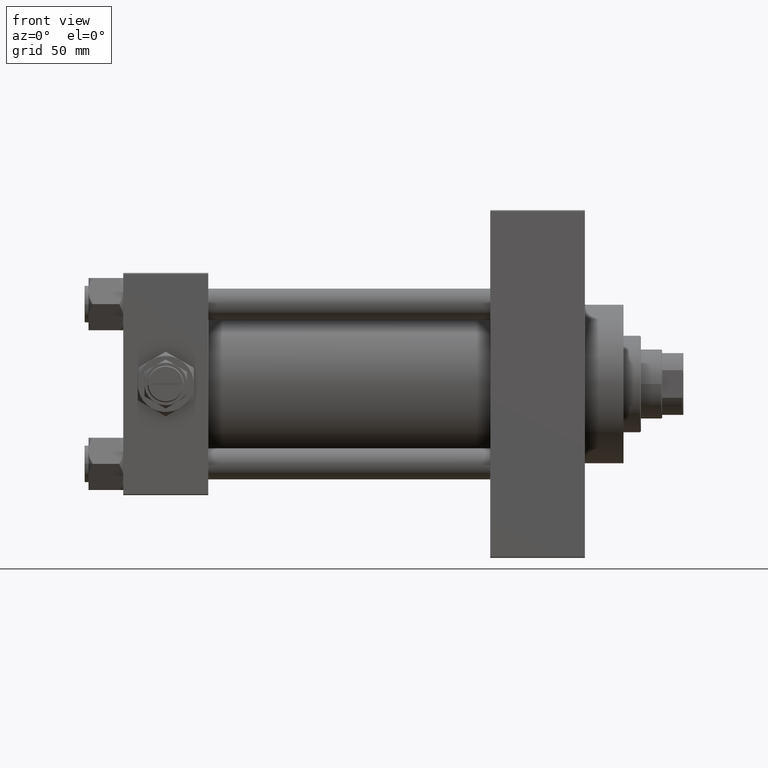
[diagram: clean part render]
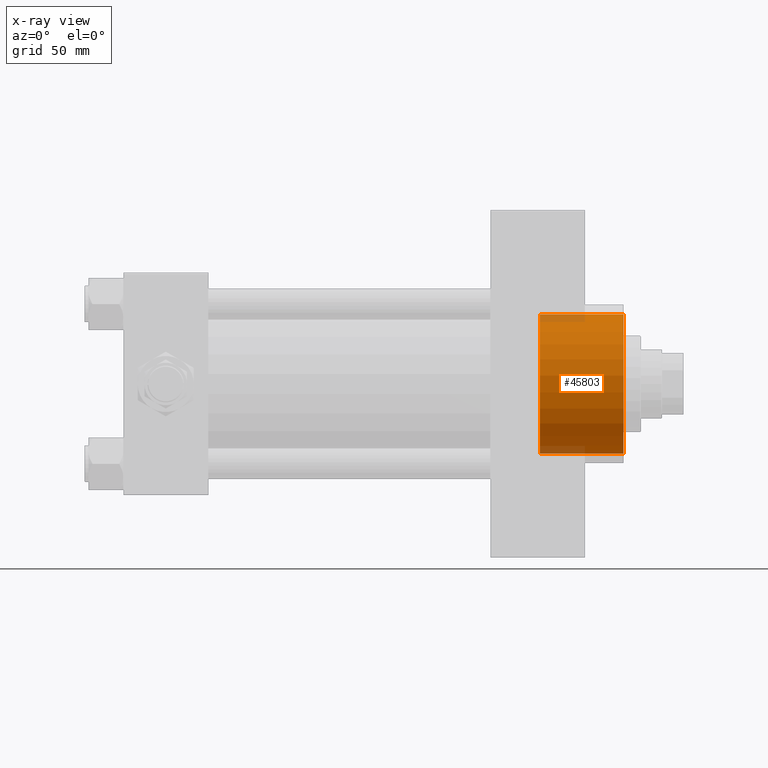
[diagram: x-ray — body ghosted, one internal face saturated and labeled with its STEP entity id]
A machine part, front view, then the same camera in x-ray: the body is ghosted and one INTERNAL B-rep face — a face not visible from any outside direction — is saturated and labeled: STEP entity #45803.
In plain terms, the highlighted cylindrical surface (partial cylindrical patch) has radius 36 mm, axis along (1, 0, 0).
Its self-contained STEP definition (entity closure, byte-faithful):
#217 = CARTESIAN_POINT ( 'NONE',  ( 215.7400000000000091, 0.000000000000000000, -36.00000000000000000 ) ) ;
#1581 = CIRCLE ( 'NONE', #24737, 36.00000000000000000 ) ;
#2703 = DIRECTION ( 'NONE',  ( 0.000000000000000000, 0.000000000000000000, -1.000000000000000000 ) ) ;
#5420 = LINE ( 'NONE', #25401, #14523 ) ;
#5973 = DIRECTION ( 'NONE',  ( 1.000000000000000000, 0.000000000000000000, 0.000000000000000000 ) ) ;
#6910 = AXIS2_PLACEMENT_3D ( 'NONE', #20035, #31801, #15787 ) ;
#7104 = VECTOR ( 'NONE', #23476, 1000.000000000000000 ) ;
#8282 = ORIENTED_EDGE ( 'NONE', *, *, #27102, .F. ) ;
#8593 = VERTEX_POINT ( 'NONE', #45744 ) ;
#10449 = CARTESIAN_POINT ( 'NONE',  ( 259.0000000000000000, 0.000000000000000000, 0.000000000000000000 ) ) ;
#12031 = VERTEX_POINT ( 'NONE', #14621 ) ;
#14523 = VECTOR ( 'NONE', #44158, 1000.000000000000000 ) ;
#14621 = CARTESIAN_POINT ( 'NONE',  ( 215.7400000000000091, 4.408728476930470856E-15, 36.00000000000000000 ) ) ;
#15005 = AXIS2_PLACEMENT_3D ( 'NONE', #10449, #5973, #2703 ) ;
#15787 = DIRECTION ( 'NONE',  ( 0.000000000000000000, 0.000000000000000000, -1.000000000000000000 ) ) ;
#18281 = ORIENTED_EDGE ( 'NONE', *, *, #25264, .F. ) ;
#19307 = DIRECTION ( 'NONE',  ( 1.000000000000000000, 0.000000000000000000, 0.000000000000000000 ) ) ;
#19787 = CIRCLE ( 'NONE', #15005, 36.00000000000000000 ) ;
#20035 = CARTESIAN_POINT ( 'NONE',  ( 215.7400000000000091, 0.000000000000000000, 0.000000000000000000 ) ) ;
#22292 = FACE_OUTER_BOUND ( 'NONE', #45099, .T. ) ;
#22997 = EDGE_CURVE ( 'NONE', #8593, #32822, #19787, .T. ) ;
#23055 = CARTESIAN_POINT ( 'NONE',  ( 215.7400000000000091, 0.000000000000000000, 0.000000000000000000 ) ) ;
#23476 = DIRECTION ( 'NONE',  ( 1.000000000000000000, -0.000000000000000000, -0.000000000000000000 ) ) ;
#24737 = AXIS2_PLACEMENT_3D ( 'NONE', #23055, #19307, #30826 ) ;
#25264 = EDGE_CURVE ( 'NONE', #35239, #32822, #45745, .T. ) ;
#25401 = CARTESIAN_POINT ( 'NONE',  ( 215.7400000000000091, 4.408728476930470856E-15, 36.00000000000000000 ) ) ;
#27102 = EDGE_CURVE ( 'NONE', #12031, #35239, #1581, .T. ) ;
#27229 = CARTESIAN_POINT ( 'NONE',  ( 215.7400000000000091, 0.000000000000000000, -36.00000000000000000 ) ) ;
#27277 = ORIENTED_EDGE ( 'NONE', *, *, #22997, .T. ) ;
#30826 = DIRECTION ( 'NONE',  ( 0.000000000000000000, 0.000000000000000000, -1.000000000000000000 ) ) ;
#31801 = DIRECTION ( 'NONE',  ( 1.000000000000000000, -0.000000000000000000, -0.000000000000000000 ) ) ;
#32052 = EDGE_CURVE ( 'NONE', #12031, #8593, #5420, .T. ) ;
#32822 = VERTEX_POINT ( 'NONE', #44962 ) ;
#35239 = VERTEX_POINT ( 'NONE', #217 ) ;
#38542 = CYLINDRICAL_SURFACE ( 'NONE', #6910, 36.00000000000000000 ) ;
#44158 = DIRECTION ( 'NONE',  ( 1.000000000000000000, -0.000000000000000000, -0.000000000000000000 ) ) ;
#44962 = CARTESIAN_POINT ( 'NONE',  ( 259.0000000000000000, 0.000000000000000000, -36.00000000000000000 ) ) ;
#45099 = EDGE_LOOP ( 'NONE', ( #8282, #45370, #27277, #18281 ) ) ;
#45370 = ORIENTED_EDGE ( 'NONE', *, *, #32052, .T. ) ;
#45744 = CARTESIAN_POINT ( 'NONE',  ( 259.0000000000000000, 4.408728476930470856E-15, 36.00000000000000000 ) ) ;
#45745 = LINE ( 'NONE', #27229, #7104 ) ;
#45803 = ADVANCED_FACE ( 'NONE', ( #22292 ), #38542, .F. ) ;